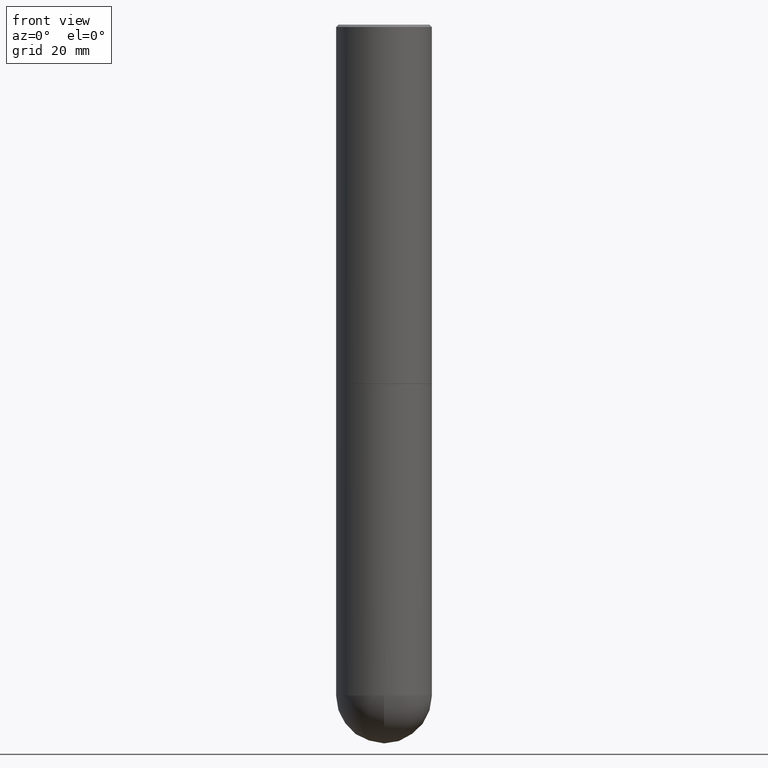
[diagram: clean part render]
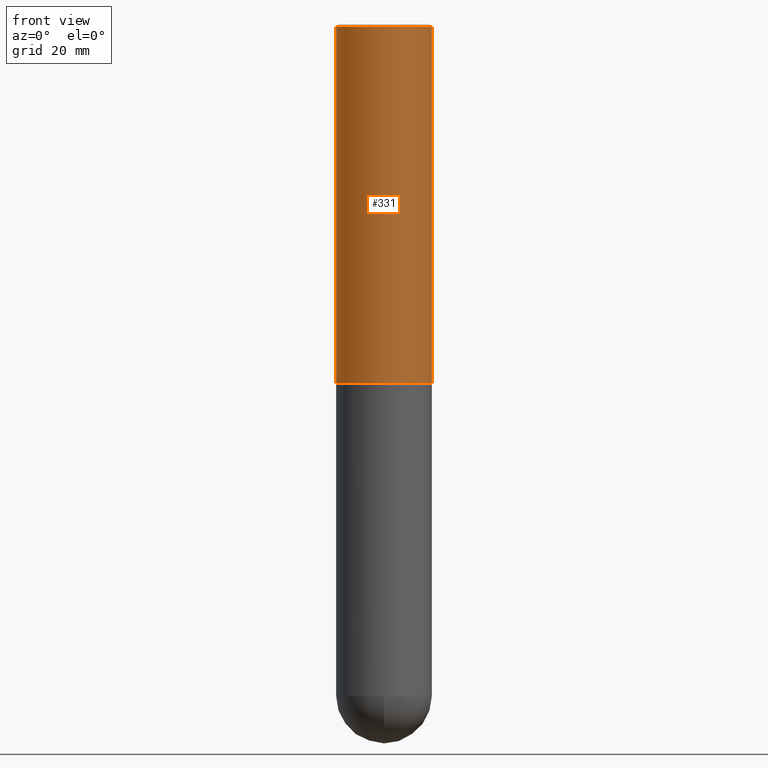
[diagram: same view with one face highlighted and labeled with its STEP entity id]
A machine part, front view. The second image highlights one B-rep face of the part: STEP entity #331.
In plain terms, the highlighted cylindrical surface (partial cylindrical patch) has radius 10 mm, axis along (-0, 0, 1).
Its self-contained STEP definition (entity closure, byte-faithful):
#4 = VECTOR ( 'NONE', #260, 39.37007874015748143 ) ;
#19 = VERTEX_POINT ( 'NONE', #120 ) ;
#22 = CIRCLE ( 'NONE', #71, 0.3937000000000000499 ) ;
#23 = VERTEX_POINT ( 'NONE', #182 ) ;
#36 = CARTESIAN_POINT ( 'NONE',  ( 0.000000000000000000, 0.000000000000000000, 0.000000000000000000 ) ) ;
#47 = VERTEX_POINT ( 'NONE', #365 ) ;
#67 = CARTESIAN_POINT ( 'NONE',  ( -0.3937000000000003830, -2.390410796632568923E-15, -2.951700000000000212 ) ) ;
#71 = AXIS2_PLACEMENT_3D ( 'NONE', #207, #218, #391 ) ;
#91 = LINE ( 'NONE', #325, #210 ) ;
#100 = EDGE_CURVE ( 'NONE', #47, #23, #376, .T. ) ;
#102 = DIRECTION ( 'NONE',  ( 1.000000000000000000, -6.982962677686269077E-15, 0.000000000000000000 ) ) ;
#120 = CARTESIAN_POINT ( 'NONE',  ( -0.3937000000000000499, 2.679362779428219918E-15, -0.02000000000000009062 ) ) ;
#137 = EDGE_CURVE ( 'NONE', #251, #19, #91, .T. ) ;
#165 = DIRECTION ( 'NONE',  ( -2.445468806185136597E-29, 3.491481338843145583E-15, 1.000000000000000000 ) ) ;
#182 = CARTESIAN_POINT ( 'NONE',  ( 0.3937000000000000499, -2.770807688499515734E-15, -0.02000000000000009062 ) ) ;
#189 = DIRECTION ( 'NONE',  ( -2.445468806185136877E-29, 3.491481338843145188E-15, 1.000000000000000000 ) ) ;
#200 = EDGE_CURVE ( 'NONE', #251, #47, #273, .T. ) ;
#201 = FACE_OUTER_BOUND ( 'NONE', #312, .T. ) ;
#207 = CARTESIAN_POINT ( 'NONE',  ( 4.890937612370295054E-31, -6.982962677686322424E-17, -0.02000000000000009062 ) ) ;
#210 = VECTOR ( 'NONE', #189, 39.37007874015748143 ) ;
#218 = DIRECTION ( 'NONE',  ( -2.445468806185136597E-29, 3.491481338843145583E-15, 1.000000000000000000 ) ) ;
#251 = VERTEX_POINT ( 'NONE', #67 ) ;
#260 = DIRECTION ( 'NONE',  ( -2.445468806185136877E-29, 3.491481338843145188E-15, 1.000000000000000000 ) ) ;
#272 = DIRECTION ( 'NONE',  ( 1.000000000000000000, -6.982962677686266711E-15, 4.876176775795935793E-29 ) ) ;
#273 = CIRCLE ( 'NONE', #309, 0.3937000000000002720 ) ;
#297 = DIRECTION ( 'NONE',  ( -2.445468806185136597E-29, 3.491481338843145583E-15, 1.000000000000000000 ) ) ;
#309 = AXIS2_PLACEMENT_3D ( 'NONE', #351, #297, #102 ) ;
#311 = ORIENTED_EDGE ( 'NONE', *, *, #402, .F. ) ;
#312 = EDGE_LOOP ( 'NONE', ( #398, #375, #344, #311 ) ) ;
#323 = CARTESIAN_POINT ( 'NONE',  ( 0.3937000000000001609, -2.749192406205084400E-15, 1.919750796630860732E-29 ) ) ;
#325 = CARTESIAN_POINT ( 'NONE',  ( -0.3937000000000001609, 2.797406750687515575E-15, -1.936584745033357296E-29 ) ) ;
#329 = CYLINDRICAL_SURFACE ( 'NONE', #336, 0.3937000000000001609 ) ;
#331 = ADVANCED_FACE ( 'NONE', ( #201 ), #329, .T. ) ;
#336 = AXIS2_PLACEMENT_3D ( 'NONE', #36, #165, #272 ) ;
#344 = ORIENTED_EDGE ( 'NONE', *, *, #100, .T. ) ;
#351 = CARTESIAN_POINT ( 'NONE',  ( 7.218290275216666916E-29, -1.030580546786331359E-14, -2.951700000000000212 ) ) ;
#365 = CARTESIAN_POINT ( 'NONE',  ( 0.3937000000000002720, -1.305499787406839996E-14, -2.951700000000000212 ) ) ;
#375 = ORIENTED_EDGE ( 'NONE', *, *, #200, .T. ) ;
#376 = LINE ( 'NONE', #323, #4 ) ;
#391 = DIRECTION ( 'NONE',  ( 1.000000000000000000, -6.982962677686265922E-15, 0.000000000000000000 ) ) ;
#398 = ORIENTED_EDGE ( 'NONE', *, *, #137, .F. ) ;
#402 = EDGE_CURVE ( 'NONE', #19, #23, #22, .T. ) ;